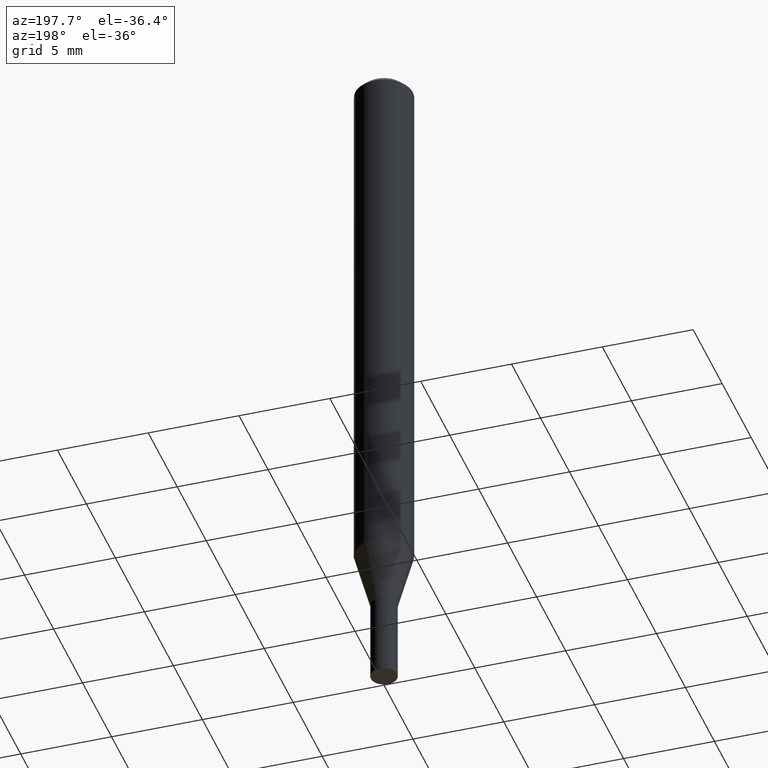
[diagram: clean part render]
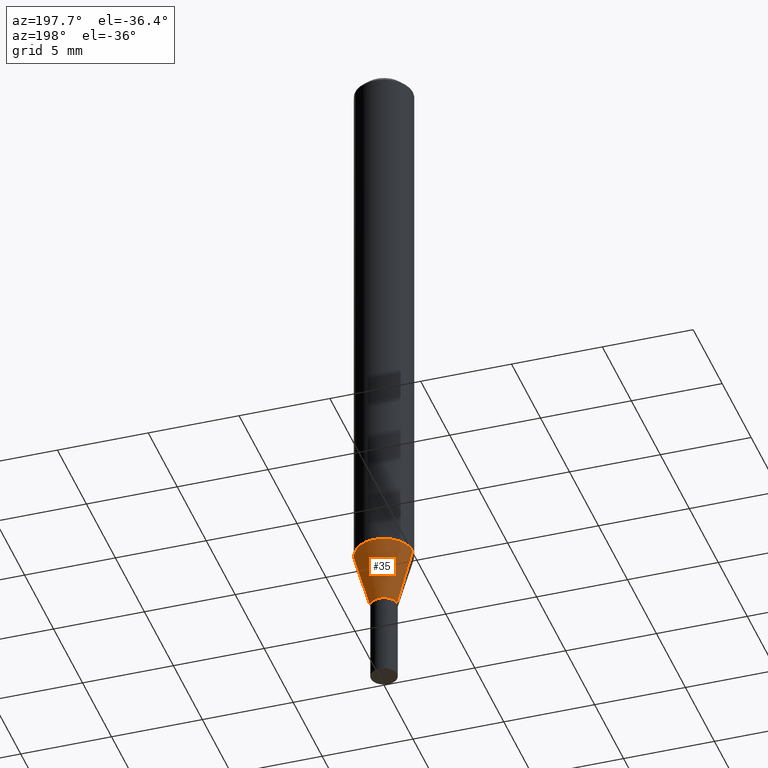
[diagram: same view with one face highlighted and labeled with its STEP entity id]
A machine part, auxiliary view. The second image highlights one B-rep face of the part: STEP entity #35.
In plain terms, the highlighted conical surface has half-angle 15 deg.
Its self-contained STEP definition (entity closure, byte-faithful):
#11 = VECTOR ( 'NONE', #258, 39.37007874015748854 ) ;
#33 = ORIENTED_EDGE ( 'NONE', *, *, #313, .F. ) ;
#35 = ADVANCED_FACE ( 'NONE', ( #371 ), #425, .T. ) ;
#40 = EDGE_LOOP ( 'NONE', ( #381, #320, #145, #33 ) ) ;
#48 = DIRECTION ( 'NONE',  ( -2.445468806185136597E-29, 3.491481338843145583E-15, 1.000000000000000000 ) ) ;
#50 = CARTESIAN_POINT ( 'NONE',  ( -0.06250000000000000000, -3.718141560575843830E-15, -1.192110272542658223 ) ) ;
#57 = EDGE_CURVE ( 'NONE', #251, #212, #412, .T. ) ;
#70 = CARTESIAN_POINT ( 'NONE',  ( 0.02849999999999991776, -4.804278322248167148E-15, -1.318999999999999950 ) ) ;
#83 = CARTESIAN_POINT ( 'NONE',  ( 3.225573355358195400E-29, -4.605263885934108641E-15, -1.318999999999999950 ) ) ;
#116 = LINE ( 'NONE', #376, #11 ) ;
#137 = VERTEX_POINT ( 'NONE', #445 ) ;
#144 = LINE ( 'NONE', #289, #380 ) ;
#145 = ORIENTED_EDGE ( 'NONE', *, *, #57, .F. ) ;
#148 = CARTESIAN_POINT ( 'NONE',  ( 3.225573355358195400E-29, -4.605263885934108641E-15, -1.318999999999999950 ) ) ;
#155 = DIRECTION ( 'NONE',  ( 1.000000000000000000, -6.982962677686270655E-15, 0.000000000000000000 ) ) ;
#163 = AXIS2_PLACEMENT_3D ( 'NONE', #83, #48, #260 ) ;
#175 = EDGE_CURVE ( 'NONE', #254, #137, #308, .T. ) ;
#182 = EDGE_CURVE ( 'NONE', #137, #212, #116, .T. ) ;
#185 = CARTESIAN_POINT ( 'NONE',  ( 2.915268485035931806E-29, -4.162230770425907235E-15, -1.192110272542658223 ) ) ;
#191 = DIRECTION ( 'NONE',  ( -2.445468806185136597E-29, 3.491481338843145583E-15, 1.000000000000000000 ) ) ;
#212 = VERTEX_POINT ( 'NONE', #50 ) ;
#233 = AXIS2_PLACEMENT_3D ( 'NONE', #148, #295, #440 ) ;
#251 = VERTEX_POINT ( 'NONE', #434 ) ;
#254 = VERTEX_POINT ( 'NONE', #70 ) ;
#258 = DIRECTION ( 'NONE',  ( -0.2588190451025211836, 5.211531920934547886E-15, 0.9659258262890679791 ) ) ;
#260 = DIRECTION ( 'NONE',  ( 1.000000000000000000, -6.982962677686268288E-15, 0.000000000000000000 ) ) ;
#289 = CARTESIAN_POINT ( 'NONE',  ( 0.02849999999999991776, -4.804278322248167148E-15, -1.318999999999999950 ) ) ;
#295 = DIRECTION ( 'NONE',  ( -2.445468806185136597E-29, 3.491481338843145583E-15, 1.000000000000000000 ) ) ;
#308 = CIRCLE ( 'NONE', #233, 0.02849999999999991776 ) ;
#313 = EDGE_CURVE ( 'NONE', #254, #251, #144, .T. ) ;
#320 = ORIENTED_EDGE ( 'NONE', *, *, #182, .T. ) ;
#371 = FACE_OUTER_BOUND ( 'NONE', #40, .T. ) ;
#376 = CARTESIAN_POINT ( 'NONE',  ( -0.02849999999999991776, -4.402759206242480303E-15, -1.318999999999999950 ) ) ;
#380 = VECTOR ( 'NONE', #437, 39.37007874015748854 ) ;
#381 = ORIENTED_EDGE ( 'NONE', *, *, #175, .T. ) ;
#412 = CIRCLE ( 'NONE', #418, 0.06250000000000000000 ) ;
#418 = AXIS2_PLACEMENT_3D ( 'NONE', #185, #191, #155 ) ;
#425 = CONICAL_SURFACE ( 'NONE', #163, 0.02849999999999991776, 0.2617993877991499074 ) ;
#434 = CARTESIAN_POINT ( 'NONE',  ( 0.06250000000000000000, -4.598665937781298116E-15, -1.192110272542658223 ) ) ;
#437 = DIRECTION ( 'NONE',  ( 0.2588190451025211836, 1.565188264969622559E-15, 0.9659258262890679791 ) ) ;
#440 = DIRECTION ( 'NONE',  ( 1.000000000000000000, -6.982962677686268288E-15, 0.000000000000000000 ) ) ;
#445 = CARTESIAN_POINT ( 'NONE',  ( -0.02849999999999991776, -4.060450383409162461E-15, -1.318999999999999950 ) ) ;